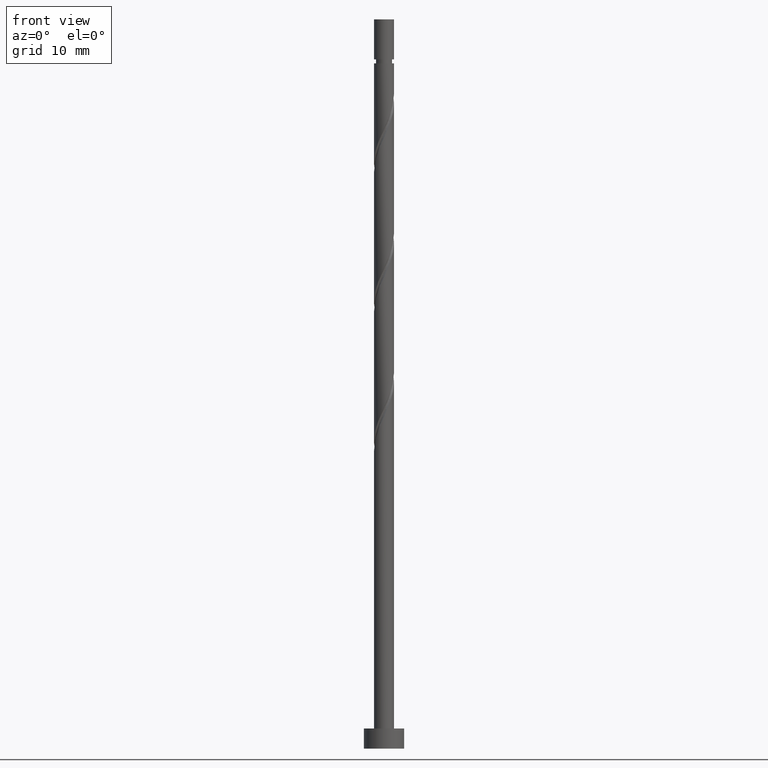
[diagram: clean part render]
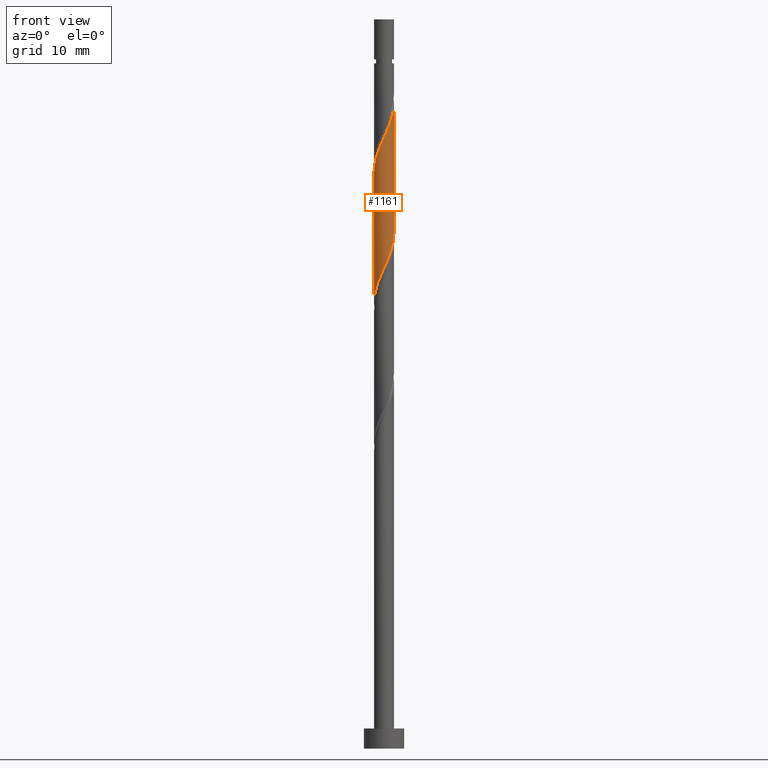
[diagram: same view with one face highlighted and labeled with its STEP entity id]
A machine part, front view. The second image highlights one B-rep face of the part: STEP entity #1161.
In plain terms, the highlighted cylindrical surface (edge-blend (fillet) strip) has radius 1.5 mm, axis along (-0, -0, -1).
Its self-contained STEP definition (entity closure, byte-faithful):
#2 =( BOUNDED_CURVE ( )  B_SPLINE_CURVE ( 2, ( #35, #775, #164, #56, #429, #1498, #901, #150, #1361, #1387, #298, #641, #1007, #1134, #792, #919, #290, #1268, #180, #911, #532, #40, #1249 ),
 .UNSPECIFIED., .F., .T. ) 
 B_SPLINE_CURVE_WITH_KNOTS ( ( 3, 2, 2, 2, 2, 2, 2, 2, 2, 2, 2, 3 ),
 ( 0.5545322023138549161, 0.5625000000000000000, 0.5749999999999999556, 0.5875000000000000222, 0.5999999999999999778, 0.6125000000000000444, 0.6250000000000000000, 0.6374999999999999556, 0.6500000000000000222, 0.6624999999999999778, 0.6750000000000000444, 0.6795322023138551382 ),
 .UNSPECIFIED. ) 
 CURVE ( )  GEOMETRIC_REPRESENTATION_ITEM ( )  RATIONAL_B_SPLINE_CURVE ( ( 0.9039174447099324050, 0.9019565955404613700, 0.9090909090909099488, 0.8978984914501261239, 0.9090909090909099488, 0.8978984914501261239, 0.9090909090909099488, 0.8978984914501261239, 0.9090909090909099488, 0.8978984914501261239, 0.9090909090909099488, 0.8978984914501261239, 0.9090909090909099488, 0.8978984914501261239, 0.9090909090909099488, 0.8978984914501261239, 0.9090909090909099488, 0.8978984914501261239, 0.9090909090909099488, 0.8978984914501261239, 0.9090909090909099488, 0.9050328050005744807, 0.9039174447099322940 ) ) 
 REPRESENTATION_ITEM ( '' )  );
#35 = CARTESIAN_POINT ( 'NONE',  ( 1.500000000000000888, -1.791675782593099320E-15, 77.02967813019692755 ) ) ;
#40 = CARTESIAN_POINT ( 'NONE',  ( -1.500000000000000222, -0.08546060616965062140, 66.80252255273752837 ) ) ;
#41 = CARTESIAN_POINT ( 'NONE',  ( -0.6225557971272882574, -1.364706664255441293, 89.90654235539331296 ) ) ;
#56 = CARTESIAN_POINT ( 'NONE',  ( 1.422722841493176738, -0.5313213584090545893, 75.84404235539331296 ) ) ;
#115 = CARTESIAN_POINT ( 'NONE',  ( -1.500000000000000444, -2.571317127319803131E-15, 66.61301146353025615 ) ) ;
#150 = CARTESIAN_POINT ( 'NONE',  ( 0.8387040983525493321, -1.266103512756638905, 73.76070902205997015 ) ) ;
#164 = CARTESIAN_POINT ( 'NONE',  ( 1.470000000000000639, -0.2984962311319863115, 76.36487568872664156 ) ) ;
#180 = CARTESIAN_POINT ( 'NONE',  ( -1.364706664255440183, -0.6225557971272867031, 68.03154235539332717 ) ) ;
#181 = CARTESIAN_POINT ( 'NONE',  ( 0.2984962311319860340, -1.470000000000002638, 91.98987568872664156 ) ) ;
#200 = EDGE_CURVE ( 'NONE', #346, #1239, #1262, .T. ) ;
#223 = EDGE_CURVE ( 'NONE', #377, #346, #719, .T. ) ;
#263 = ORIENTED_EDGE ( 'NONE', *, *, #889, .T. ) ;
#281 = CARTESIAN_POINT ( 'NONE',  ( 1.500000000000002887, 2.323930931396892317E-16, 96.53340658058969836 ) ) ;
#290 = CARTESIAN_POINT ( 'NONE',  ( -1.105532844612584720, -1.013803299206906150, 69.07320902206001279 ) ) ;
#291 = CARTESIAN_POINT ( 'NONE',  ( -1.470000000000002638, -0.2984962311319860895, 86.78154235539329875 ) ) ;
#298 = CARTESIAN_POINT ( 'NONE',  ( 0.1703681960235531034, -1.490293487130532224, 72.19820902206001279 ) ) ;
#307 = DIRECTION ( 'NONE',  ( -0.000000000000000000, -0.000000000000000000, -1.000000000000000000 ) ) ;
#315 = CARTESIAN_POINT ( 'NONE',  ( 1.500000000000002887, 2.323930931396892317E-16, 96.53340658058969836 ) ) ;
#346 = VERTEX_POINT ( 'NONE', #315 ) ;
#377 = VERTEX_POINT ( 'NONE', #1522 ) ;
#412 = CARTESIAN_POINT ( 'NONE',  ( 1.490293487130534222, -0.1703681960235539916, 96.15654235539329875 ) ) ;
#425 = EDGE_LOOP ( 'NONE', ( #1264, #1187, #263, #1036 ) ) ;
#429 = CARTESIAN_POINT ( 'NONE',  ( 1.305812670777220186, -0.7381417674387927841, 75.32320902205998436 ) ) ;
#436 = CARTESIAN_POINT ( 'NONE',  ( 1.105532844612585830, -1.013803299206907926, 94.07320902205998436 ) ) ;
#532 = CARTESIAN_POINT ( 'NONE',  ( -1.490293487130532224, -0.1703681960235532145, 66.98987568872666998 ) ) ;
#534 = CARTESIAN_POINT ( 'NONE',  ( 1.463309815754243015, -0.4064074959020250732, 95.63570902205998436 ) ) ;
#540 = CARTESIAN_POINT ( 'NONE',  ( 1.500000000000000888, -1.791675782593099320E-15, 77.02967813019692755 ) ) ;
#541 = CARTESIAN_POINT ( 'NONE',  ( 0.5313213584090545893, -1.422722841493179402, 92.51070902205998436 ) ) ;
#561 = VERTEX_POINT ( 'NONE', #115 ) ;
#641 = CARTESIAN_POINT ( 'NONE',  ( -0.06567110385491777003, -1.517277158506823431, 71.67737568872665577 ) ) ;
#668 = CARTESIAN_POINT ( 'NONE',  ( -1.500000000000002665, 1.656737857544236133E-15, 86.11673991392305538 ) ) ;
#675 = CARTESIAN_POINT ( 'NONE',  ( 1.266103512756640459, -0.8387040983525509974, 94.59404235539332717 ) ) ;
#719 =( BOUNDED_CURVE ( )  B_SPLINE_CURVE ( 2, ( #668, #809, #291, #1041, #1008, #1509, #920, #800, #41, #1144, #1524, #1275, #181, #541, #1493, #912, #436, #675, #895, #534, #412, #1023, #281 ),
 .UNSPECIFIED., .F., .T. ) 
 B_SPLINE_CURVE_WITH_KNOTS ( ( 3, 2, 2, 2, 2, 2, 2, 2, 2, 2, 2, 3 ),
 ( 0.5545322023138552492, 0.5625000000000000000, 0.5749999999999999556, 0.5875000000000000222, 0.5999999999999999778, 0.6125000000000000444, 0.6250000000000000000, 0.6374999999999999556, 0.6500000000000000222, 0.6624999999999999778, 0.6750000000000000444, 0.6795322023138549161 ),
 .UNSPECIFIED. ) 
 CURVE ( )  GEOMETRIC_REPRESENTATION_ITEM ( )  RATIONAL_B_SPLINE_CURVE ( ( 0.9039174447099378451, 0.9019565955404671431, 0.9090909090909156109, 0.8978984914501316750, 0.9090909090909156109, 0.8978984914501316750, 0.9090909090909156109, 0.8978984914501316750, 0.9090909090909156109, 0.8978984914501316750, 0.9090909090909156109, 0.8978984914501316750, 0.9090909090909156109, 0.8978984914501316750, 0.9090909090909156109, 0.8978984914501316750, 0.9090909090909156109, 0.8978984914501316750, 0.9090909090909156109, 0.8978984914501316750, 0.9090909090909156109, 0.9050328050005802538, 0.9039174447099379561 ) ) 
 REPRESENTATION_ITEM ( '' )  );
#775 = CARTESIAN_POINT ( 'NONE',  ( 1.500000000000001554, -0.1507556722888766521, 76.69537355478908580 ) ) ;
#777 = CARTESIAN_POINT ( 'NONE',  ( -1.500000000000000222, 0.000000000000000000, 108.9800000000000040 ) ) ;
#792 = CARTESIAN_POINT ( 'NONE',  ( -0.7381417674387925620, -1.305812670777220186, 70.11487568872665577 ) ) ;
#794 = DIRECTION ( 'NONE',  ( -0.000000000000000000, -0.000000000000000000, -1.000000000000000000 ) ) ;
#800 = CARTESIAN_POINT ( 'NONE',  ( -0.8387040983525509974, -1.266103512756640459, 89.38570902205999857 ) ) ;
#809 = CARTESIAN_POINT ( 'NONE',  ( -1.500000000000002665, -0.1507556722888825085, 86.45104448933091135 ) ) ;
#888 = DIRECTION ( 'NONE',  ( -1.000000000000000000, 0.000000000000000000, 0.000000000000000000 ) ) ;
#889 = EDGE_CURVE ( 'NONE', #377, #561, #1014, .T. ) ;
#895 = CARTESIAN_POINT ( 'NONE',  ( 1.364706664255441293, -0.6225557971272882574, 95.11487568872664156 ) ) ;
#901 = CARTESIAN_POINT ( 'NONE',  ( 1.013803299206906150, -1.105532844612584720, 74.28154235539332717 ) ) ;
#902 = DIRECTION ( 'NONE',  ( -0.000000000000000000, -0.000000000000000000, -1.000000000000000000 ) ) ;
#911 = CARTESIAN_POINT ( 'NONE',  ( -1.463309815754240351, -0.4064074959020240740, 67.51070902205999857 ) ) ;
#912 = CARTESIAN_POINT ( 'NONE',  ( 0.9449621764685313119, -1.188902500061264744, 93.55237568872664156 ) ) ;
#919 = CARTESIAN_POINT ( 'NONE',  ( -0.9449621764685304237, -1.188902500061262968, 69.59404235539332717 ) ) ;
#920 = CARTESIAN_POINT ( 'NONE',  ( -1.013803299206907926, -1.105532844612585830, 88.86487568872666998 ) ) ;
#954 = AXIS2_PLACEMENT_3D ( 'NONE', #1378, #307, #888 ) ;
#1007 = CARTESIAN_POINT ( 'NONE',  ( -0.2984962311319861450, -1.470000000000000639, 71.15654235539331296 ) ) ;
#1008 = CARTESIAN_POINT ( 'NONE',  ( -1.305812670777222406, -0.7381417674387932282, 87.82320902205999857 ) ) ;
#1014 = LINE ( 'NONE', #777, #1256 ) ;
#1023 = CARTESIAN_POINT ( 'NONE',  ( 1.500000000000001998, -0.08546060616965552026, 96.34389549138241193 ) ) ;
#1033 = FACE_OUTER_BOUND ( 'NONE', #425, .T. ) ;
#1036 = ORIENTED_EDGE ( 'NONE', *, *, #1238, .F. ) ;
#1041 = CARTESIAN_POINT ( 'NONE',  ( -1.422722841493179402, -0.5313213584090547004, 87.30237568872665577 ) ) ;
#1134 = CARTESIAN_POINT ( 'NONE',  ( -0.5313213584090544783, -1.422722841493176738, 70.63570902205995594 ) ) ;
#1144 = CARTESIAN_POINT ( 'NONE',  ( -0.4064074959020250732, -1.463309815754243015, 90.42737568872665577 ) ) ;
#1149 = CYLINDRICAL_SURFACE ( 'NONE', #954, 1.500000000000000222 ) ;
#1161 = ADVANCED_FACE ( 'NONE', ( #1033 ), #1149, .T. ) ;
#1187 = ORIENTED_EDGE ( 'NONE', *, *, #223, .F. ) ;
#1238 = EDGE_CURVE ( 'NONE', #1239, #561, #2, .T. ) ;
#1239 = VERTEX_POINT ( 'NONE', #540 ) ;
#1249 = CARTESIAN_POINT ( 'NONE',  ( -1.500000000000000444, -2.571317127319803131E-15, 66.61301146353025615 ) ) ;
#1256 = VECTOR ( 'NONE', #794, 1000.000000000000000 ) ;
#1262 = LINE ( 'NONE', #1517, #1379 ) ;
#1264 = ORIENTED_EDGE ( 'NONE', *, *, #200, .F. ) ;
#1268 = CARTESIAN_POINT ( 'NONE',  ( -1.266103512756638905, -0.8387040983525493321, 68.55237568872664156 ) ) ;
#1275 = CARTESIAN_POINT ( 'NONE',  ( 0.06567110385491718716, -1.517277158506825430, 91.46904235539331296 ) ) ;
#1361 = CARTESIAN_POINT ( 'NONE',  ( 0.6225557971272867031, -1.364706664255440183, 73.23987568872665577 ) ) ;
#1378 = CARTESIAN_POINT ( 'NONE',  ( 0.000000000000000000, 0.000000000000000000, 108.9800000000000040 ) ) ;
#1379 = VECTOR ( 'NONE', #902, 1000.000000000000000 ) ;
#1387 = CARTESIAN_POINT ( 'NONE',  ( 0.4064074959020239630, -1.463309815754240351, 72.71904235539329875 ) ) ;
#1493 = CARTESIAN_POINT ( 'NONE',  ( 0.7381417674387931172, -1.305812670777222406, 93.03154235539332717 ) ) ;
#1498 = CARTESIAN_POINT ( 'NONE',  ( 1.188902500061262968, -0.9449621764685304237, 74.80237568872664156 ) ) ;
#1509 = CARTESIAN_POINT ( 'NONE',  ( -1.188902500061264744, -0.9449621764685313119, 88.34404235539329875 ) ) ;
#1517 = CARTESIAN_POINT ( 'NONE',  ( 1.500000000000000222, 1.836970198721030181E-16, 108.9800000000000040 ) ) ;
#1522 = CARTESIAN_POINT ( 'NONE',  ( -1.500000000000002665, 1.656737857544236133E-15, 86.11673991392305538 ) ) ;
#1524 = CARTESIAN_POINT ( 'NONE',  ( -0.1703681960235538806, -1.490293487130534222, 90.94820902205999857 ) ) ;